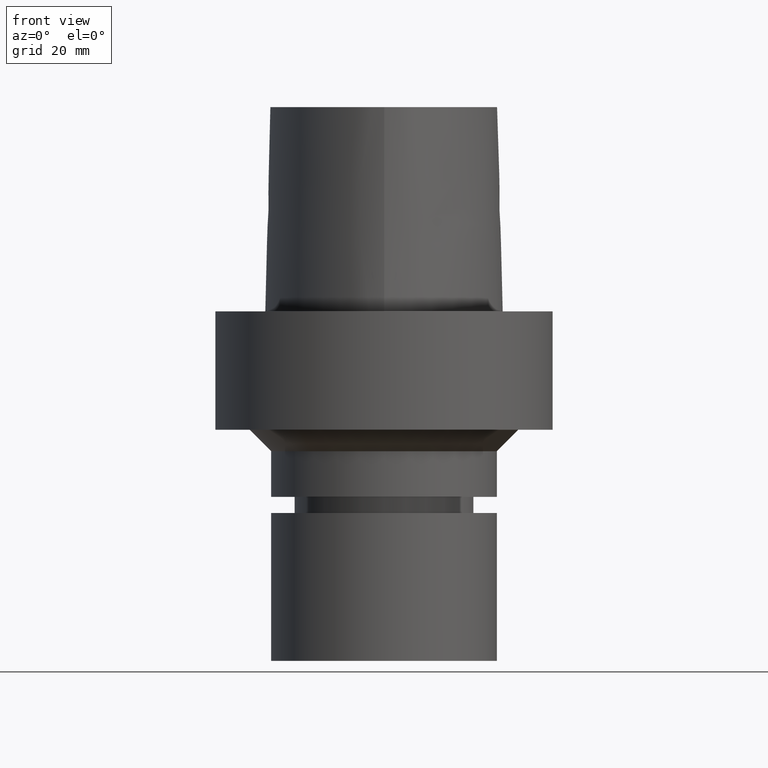
[diagram: clean part render]
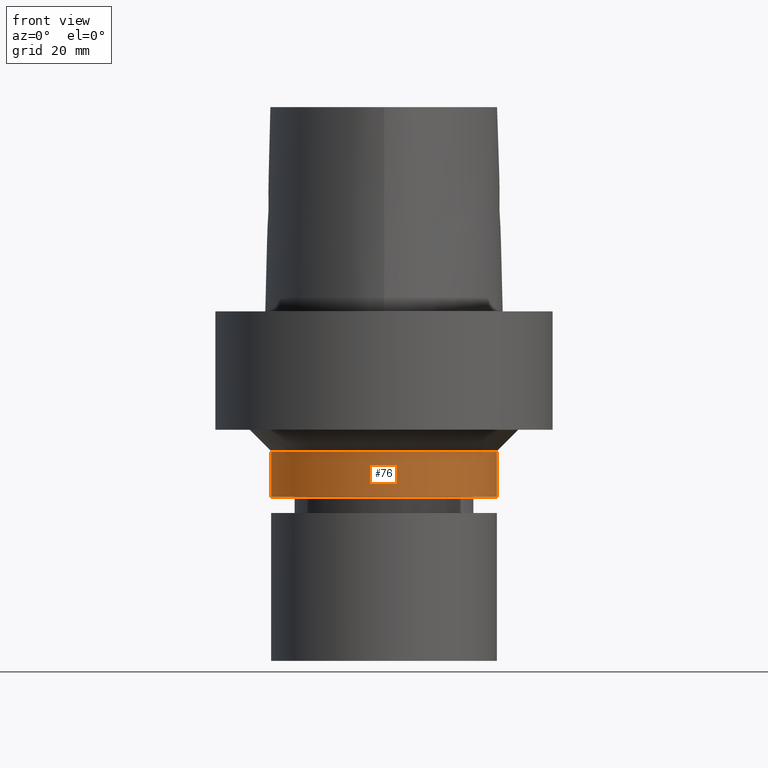
[diagram: same view with one face highlighted and labeled with its STEP entity id]
A machine part, front view. The second image highlights one B-rep face of the part: STEP entity #76.
In plain terms, the highlighted cylindrical surface (bore or boss wall) has radius 21 mm, axis along (0, 0, -1).
Its self-contained STEP definition (entity closure, byte-faithful):
#76=ADVANCED_FACE('Unnamed[1]',(#196,#197),#198,.T.);
#92=EDGE_CURVE('Unnamed[1]',#220,#220,#221,.T.);
#99=EDGE_CURVE('Unnamed[1]',#229,#229,#230,.T.);
#196=FACE_BOUND('',#355,.T.);
#197=FACE_BOUND('',#356,.T.);
#198=CYLINDRICAL_SURFACE('',#357,21.0000000000002);
#220=VERTEX_POINT('',#459);
#221=CIRCLE('',#460,21.0000000000002);
#229=VERTEX_POINT('',#470);
#230=CIRCLE('',#471,21.0000000000001);
#355=EDGE_LOOP('',(#741));
#356=EDGE_LOOP('',(#742));
#357=AXIS2_PLACEMENT_3D('',#743,#744,#745);
#459=CARTESIAN_POINT('',(1.59204083889156E-015,21.0000000000002,-26.0));
#460=AXIS2_PLACEMENT_3D('',#764,#765,#766);
#470=CARTESIAN_POINT('',(2.11251572852918E-015,21.0000000000001,-34.5));
#471=AXIS2_PLACEMENT_3D('',#771,#772,#773);
#741=ORIENTED_EDGE('',*,*,#99,.F.);
#742=ORIENTED_EDGE('',*,*,#92,.T.);
#743=CARTESIAN_POINT('',(1.85227828371037E-015,3.70455656742074E-015,-30.25));
#744=DIRECTION('',(6.12323399573677E-017,1.22464679914735E-016,-1.0));
#745=DIRECTION('',(-1.23259516440783E-032,1.0,1.22464679914735E-016));
#764=CARTESIAN_POINT('',(1.59204083889156E-015,3.18408167778311E-015,-26.0));
#765=DIRECTION('',(6.12323399573677E-017,1.22464679914735E-016,-1.0));
#766=DIRECTION('',(-1.23259516440783E-032,1.0,1.22464679914735E-016));
#771=CARTESIAN_POINT('',(2.11251572852918E-015,4.22503145705836E-015,-34.5));
#772=DIRECTION('',(6.12323399573677E-017,1.22464679914735E-016,-1.0));
#773=DIRECTION('',(-1.23259516440783E-032,1.0,1.22464679914735E-016));